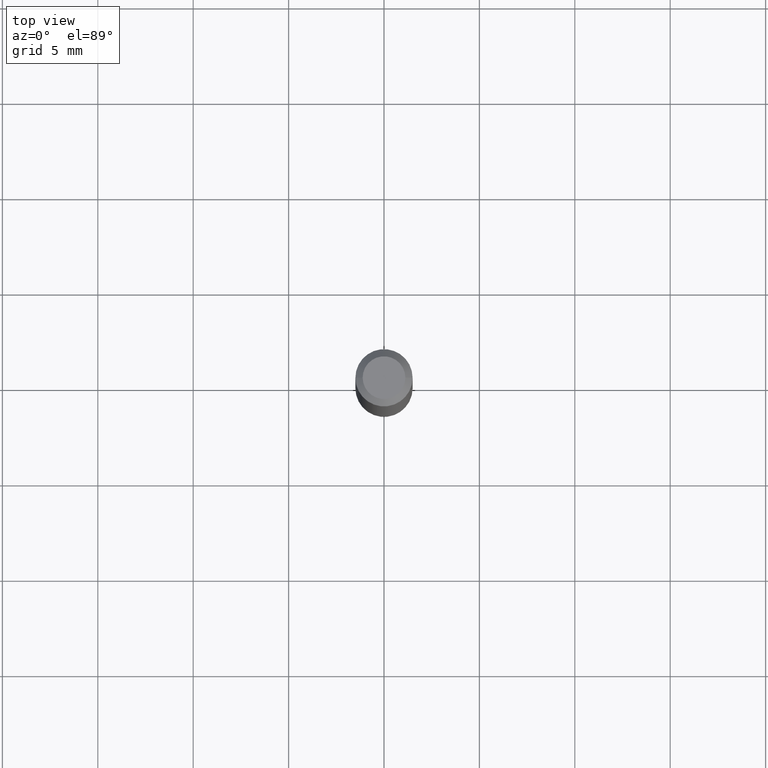
[diagram: clean part render]
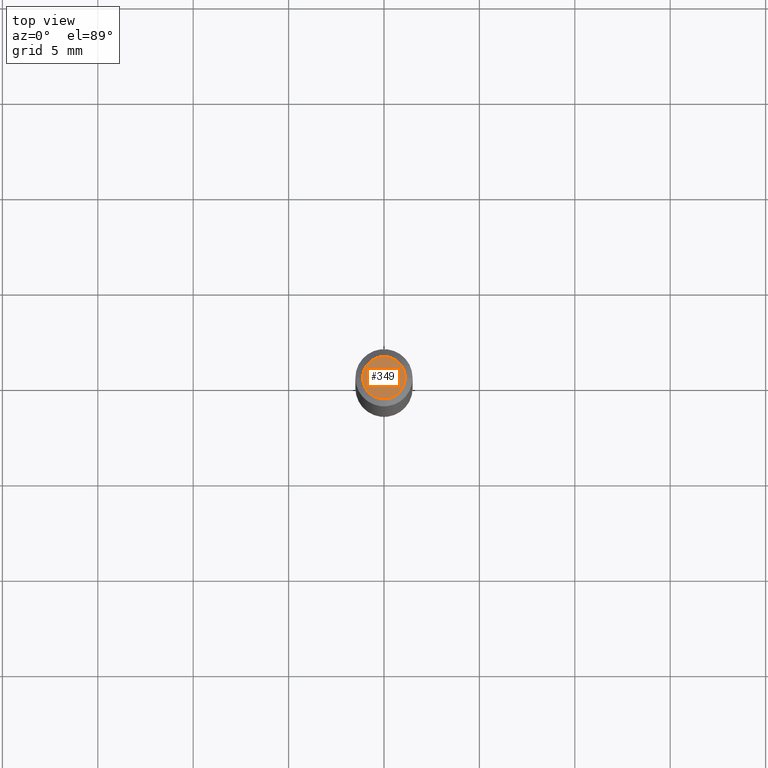
[diagram: same view with one face highlighted and labeled with its STEP entity id]
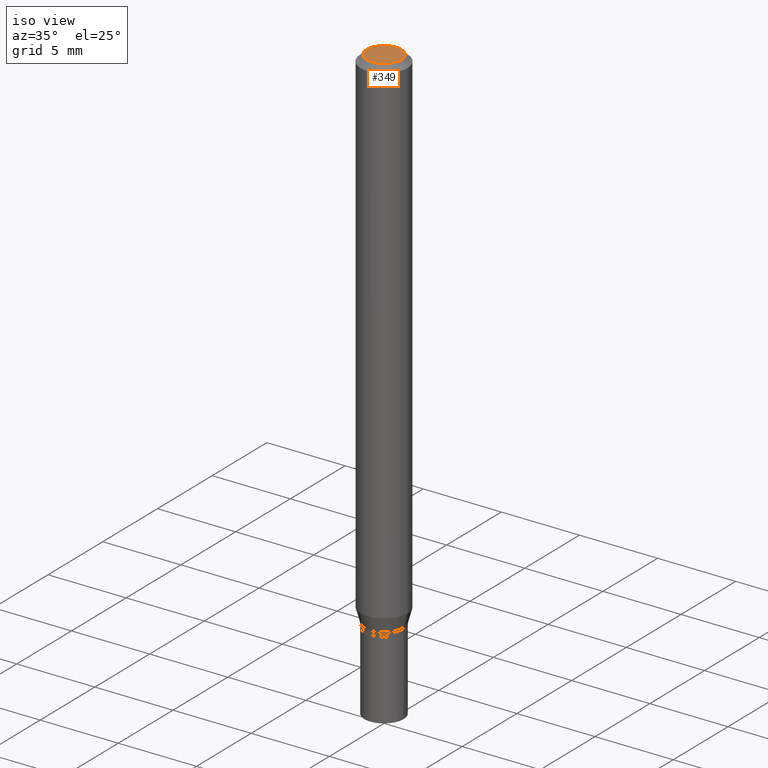
[diagram: same view with one face highlighted and labeled with its STEP entity id]
A machine part, top view. The second image highlights one B-rep face of the part: STEP entity #349.
A second angle (iso view) of the same face is appended — the face is thin or edge-on in the first view.
In plain terms, the highlighted planar face has unit normal (0, -0, -1).
Its self-contained STEP definition (entity closure, byte-faithful):
#87 = VERTEX_POINT ( 'NONE', #108 ) ;
#108 = CARTESIAN_POINT ( 'NONE',  ( -0.04404999999999999888, 3.337856159934041534E-16, 3.533548453838689148E-16 ) ) ;
#109 = DIRECTION ( 'NONE',  ( -1.000000000000000000, 6.982962677686265922E-15, -4.876176775795935793E-29 ) ) ;
#112 = CIRCLE ( 'NONE', #387, 0.04404999999999999888 ) ;
#117 = PLANE ( 'NONE',  #370 ) ;
#127 = EDGE_CURVE ( 'NONE', #246, #87, #263, .T. ) ;
#166 = ORIENTED_EDGE ( 'NONE', *, *, #464, .T. ) ;
#206 = AXIS2_PLACEMENT_3D ( 'NONE', #264, #410, #226 ) ;
#215 = ORIENTED_EDGE ( 'NONE', *, *, #127, .T. ) ;
#226 = DIRECTION ( 'NONE',  ( 1.000000000000000000, -6.982962677686265922E-15, 4.819687581474398999E-29 ) ) ;
#246 = VERTEX_POINT ( 'NONE', #335 ) ;
#263 = CIRCLE ( 'NONE', #206, 0.04404999999999999888 ) ;
#264 = CARTESIAN_POINT ( 'NONE',  ( -8.641182519006289553E-45, 1.233731848647591164E-30, 3.533548453838711334E-16 ) ) ;
#268 = CARTESIAN_POINT ( 'NONE',  ( 3.075995059520799729E-16, 0.04404999999999999888, 2.287766971589501637E-17 ) ) ;
#276 = DIRECTION ( 'NONE',  ( -2.445468806185136597E-29, 3.491481338843145583E-15, 1.000000000000000000 ) ) ;
#335 = CARTESIAN_POINT ( 'NONE',  ( 0.04404999999999999888, -3.798447818264455642E-16, 3.533548453838735986E-16 ) ) ;
#342 = DIRECTION ( 'NONE',  ( 1.000000000000000000, -6.982962677686265922E-15, 4.819687581474398999E-29 ) ) ;
#349 = ADVANCED_FACE ( 'NONE', ( #452 ), #117, .F. ) ;
#350 = CARTESIAN_POINT ( 'NONE',  ( -8.641182519006289553E-45, 1.233731848647591164E-30, 3.533548453838711334E-16 ) ) ;
#370 = AXIS2_PLACEMENT_3D ( 'NONE', #268, #413, #109 ) ;
#387 = AXIS2_PLACEMENT_3D ( 'NONE', #350, #276, #342 ) ;
#390 = EDGE_LOOP ( 'NONE', ( #166, #215 ) ) ;
#410 = DIRECTION ( 'NONE',  ( -2.445468806185136597E-29, 3.491481338843145583E-15, 1.000000000000000000 ) ) ;
#413 = DIRECTION ( 'NONE',  ( 2.438088387897960049E-29, -3.491481338843145188E-15, -1.000000000000000000 ) ) ;
#452 = FACE_OUTER_BOUND ( 'NONE', #390, .T. ) ;
#464 = EDGE_CURVE ( 'NONE', #87, #246, #112, .T. ) ;